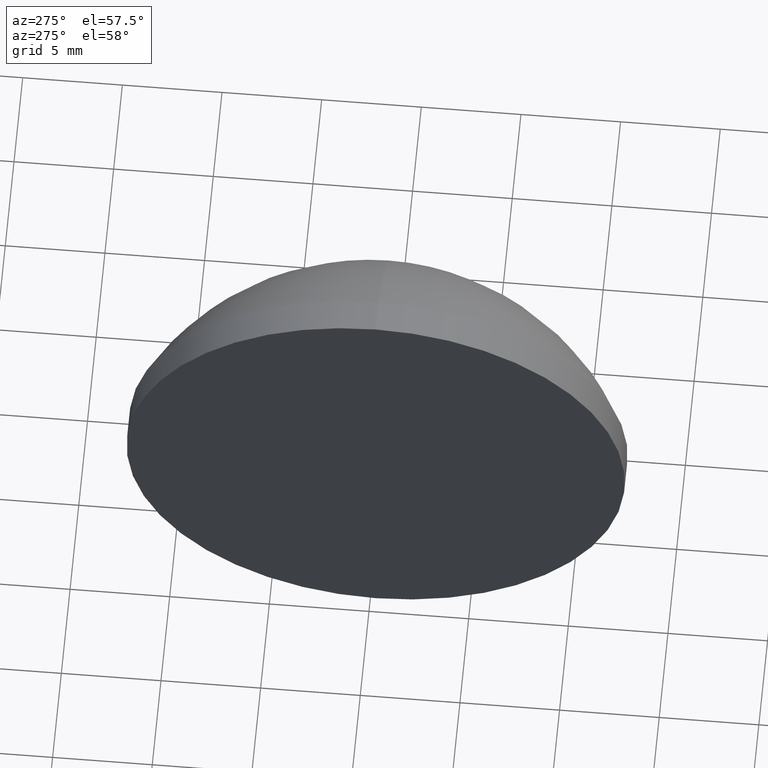
[diagram: clean part render]
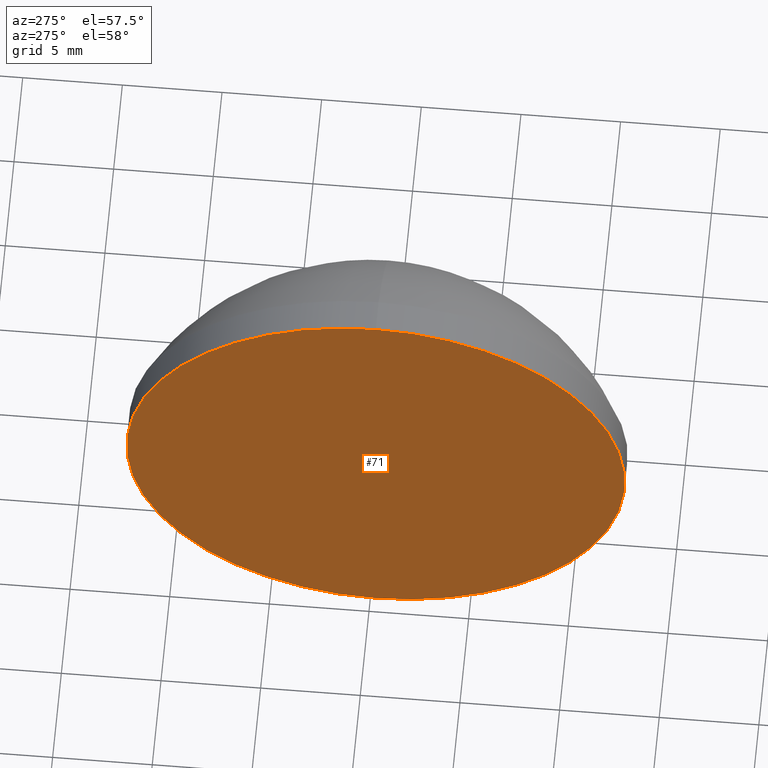
[diagram: same view with one face highlighted and labeled with its STEP entity id]
A machine part, auxiliary view. The second image highlights one B-rep face of the part: STEP entity #71.
In plain terms, the highlighted planar face has unit normal (1, 0, 0).
Its self-contained STEP definition (entity closure, byte-faithful):
#8 = FACE_OUTER_BOUND ( 'NONE', #122, .T. ) ;
#18 = AXIS2_PLACEMENT_3D ( 'NONE', #121, #136, #149 ) ;
#21 = CARTESIAN_POINT ( 'NONE',  ( 490.4569735120367100, 124.7029078037479600, 12.50000000000001100 ) ) ;
#25 = DIRECTION ( 'NONE',  ( -1.000000000000000000, -0.0000000000000000000, -0.0000000000000000000 ) ) ;
#33 = CARTESIAN_POINT ( 'NONE',  ( 490.4569735120367100, 124.7029078037479600, 0.0000000000000000000 ) ) ;
#49 = DIRECTION ( 'NONE',  ( -1.000000000000000000, -0.0000000000000000000, -0.0000000000000000000 ) ) ;
#54 = CIRCLE ( 'NONE', #82, 12.50000000000001100 ) ;
#56 = PLANE ( 'NONE',  #18 ) ;
#71 = ADVANCED_FACE ( 'NONE', ( #8 ), #56, .F. ) ;
#77 = EDGE_CURVE ( 'NONE', #103, #105, #147, .T. ) ;
#80 = CARTESIAN_POINT ( 'NONE',  ( 490.4569735120367100, 124.7029078037479600, -12.50000000000001100 ) ) ;
#82 = AXIS2_PLACEMENT_3D ( 'NONE', #117, #25, #115 ) ;
#103 = VERTEX_POINT ( 'NONE', #21 ) ;
#105 = VERTEX_POINT ( 'NONE', #80 ) ;
#111 = ORIENTED_EDGE ( 'NONE', *, *, #77, .T. ) ;
#115 = DIRECTION ( 'NONE',  ( 0.0000000000000000000, 0.0000000000000000000, 1.000000000000000000 ) ) ;
#117 = CARTESIAN_POINT ( 'NONE',  ( 490.4569735120367100, 124.7029078037479600, 0.0000000000000000000 ) ) ;
#121 = CARTESIAN_POINT ( 'NONE',  ( 490.4569735120367100, 124.7029078037479600, 0.0000000000000000000 ) ) ;
#122 = EDGE_LOOP ( 'NONE', ( #111, #143 ) ) ;
#136 = DIRECTION ( 'NONE',  ( 1.000000000000000000, 0.0000000000000000000, 0.0000000000000000000 ) ) ;
#143 = ORIENTED_EDGE ( 'NONE', *, *, #156, .T. ) ;
#147 = CIRCLE ( 'NONE', #162, 12.50000000000001100 ) ;
#149 = DIRECTION ( 'NONE',  ( 0.0000000000000000000, 0.0000000000000000000, -1.000000000000000000 ) ) ;
#150 = DIRECTION ( 'NONE',  ( 0.0000000000000000000, 0.0000000000000000000, 1.000000000000000000 ) ) ;
#156 = EDGE_CURVE ( 'NONE', #105, #103, #54, .T. ) ;
#162 = AXIS2_PLACEMENT_3D ( 'NONE', #33, #49, #150 ) ;